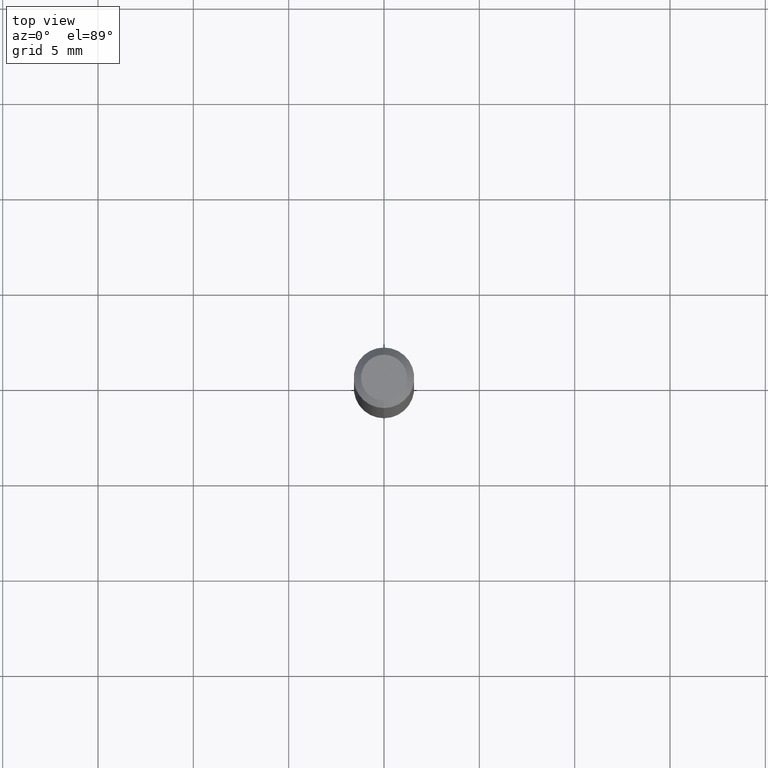
[diagram: clean part render]
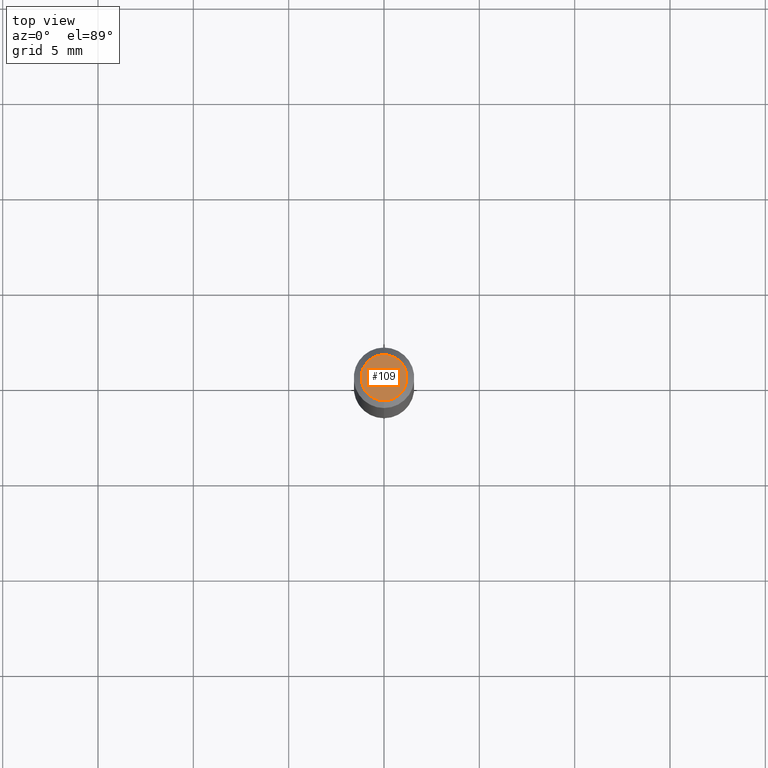
[diagram: same view with one face highlighted and labeled with its STEP entity id]
A machine part, top view. The second image highlights one B-rep face of the part: STEP entity #109.
In plain terms, the highlighted planar face has unit normal (0, -0, -1).
Its self-contained STEP definition (entity closure, byte-faithful):
#1 = DIRECTION ( 'NONE',  ( -6.982962677686266711E-15, -1.000000000000000000, 3.491485706075402250E-15 ) ) ;
#6 = CARTESIAN_POINT ( 'NONE',  ( 3.316907271900976096E-16, 0.04749999999999999362, -1.985955843430136071E-16 ) ) ;
#12 = DIRECTION ( 'NONE',  ( -2.445465756563151118E-29, 3.491485706075402250E-15, 1.000000000000000000 ) ) ;
#28 = EDGE_CURVE ( 'NONE', #198, #507, #217, .T. ) ;
#47 = FACE_OUTER_BOUND ( 'NONE', #262, .T. ) ;
#72 = AXIS2_PLACEMENT_3D ( 'NONE', #6, #324, #294 ) ;
#106 = ORIENTED_EDGE ( 'NONE', *, *, #28, .T. ) ;
#109 = ADVANCED_FACE ( 'NONE', ( #47 ), #330, .F. ) ;
#153 = CARTESIAN_POINT ( 'NONE',  ( 1.601780721259521608E-45, -2.286924066524072181E-31, -6.550002660886400500E-17 ) ) ;
#173 = CARTESIAN_POINT ( 'NONE',  ( 3.840629472727447874E-16, 0.04749999999999999362, -2.313455976474456035E-16 ) ) ;
#198 = VERTEX_POINT ( 'NONE', #173 ) ;
#215 = AXIS2_PLACEMENT_3D ( 'NONE', #438, #12, #486 ) ;
#217 = CIRCLE ( 'NONE', #215, 0.04749999999999999362 ) ;
#250 = CARTESIAN_POINT ( 'NONE',  ( -3.773273898774340269E-16, -0.04749999999999999362, 1.003455444297175812E-16 ) ) ;
#262 = EDGE_LOOP ( 'NONE', ( #106, #319 ) ) ;
#272 = CIRCLE ( 'NONE', #325, 0.04749999999999999362 ) ;
#294 = DIRECTION ( 'NONE',  ( 6.982962677686265922E-15, 1.000000000000000000, -3.491485706075402250E-15 ) ) ;
#319 = ORIENTED_EDGE ( 'NONE', *, *, #461, .T. ) ;
#324 = DIRECTION ( 'NONE',  ( 2.445465756563150838E-29, -3.491485706075402250E-15, -1.000000000000000000 ) ) ;
#325 = AXIS2_PLACEMENT_3D ( 'NONE', #153, #393, #1 ) ;
#330 = PLANE ( 'NONE',  #72 ) ;
#393 = DIRECTION ( 'NONE',  ( -2.445465756563151118E-29, 3.491485706075402250E-15, 1.000000000000000000 ) ) ;
#438 = CARTESIAN_POINT ( 'NONE',  ( 1.601780721259521608E-45, -2.286924066524072181E-31, -6.550002660886400500E-17 ) ) ;
#461 = EDGE_CURVE ( 'NONE', #507, #198, #272, .T. ) ;
#486 = DIRECTION ( 'NONE',  ( -6.982962677686266711E-15, -1.000000000000000000, 3.491485706075402250E-15 ) ) ;
#507 = VERTEX_POINT ( 'NONE', #250 ) ;